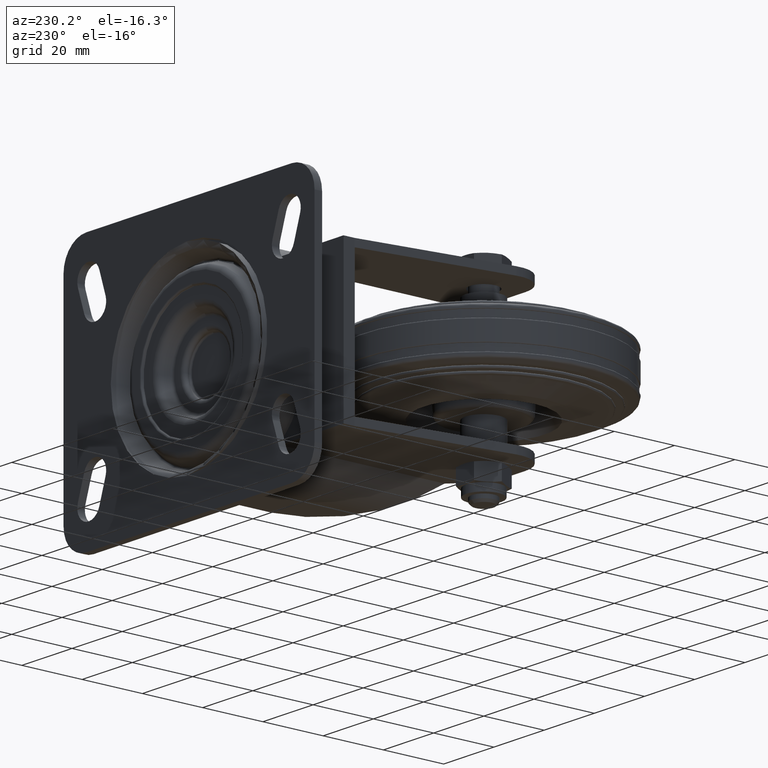
[diagram: clean part render]
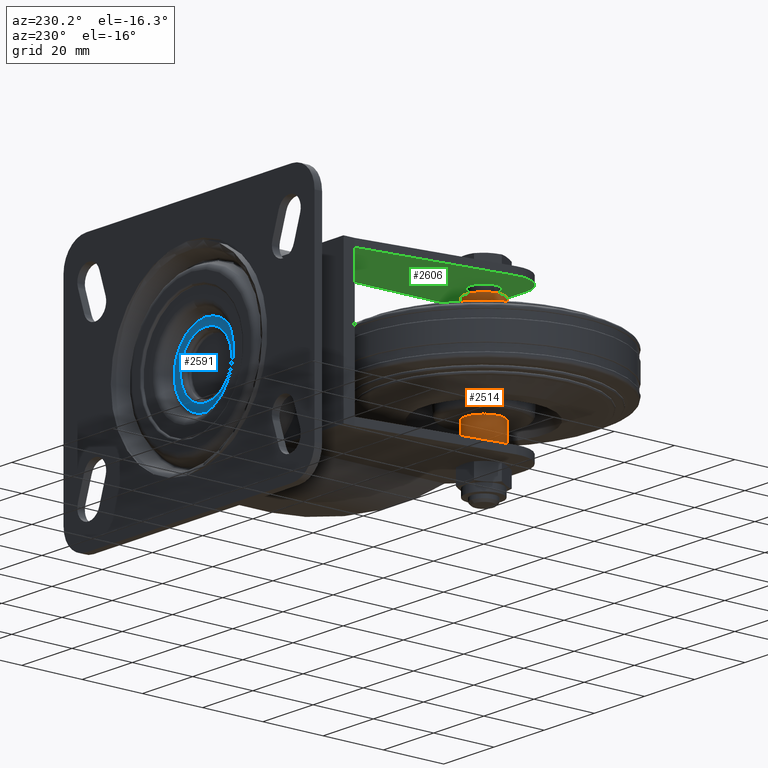
[diagram: same view with three faces highlighted in distinct colors, each labeled with its STEP entity id]
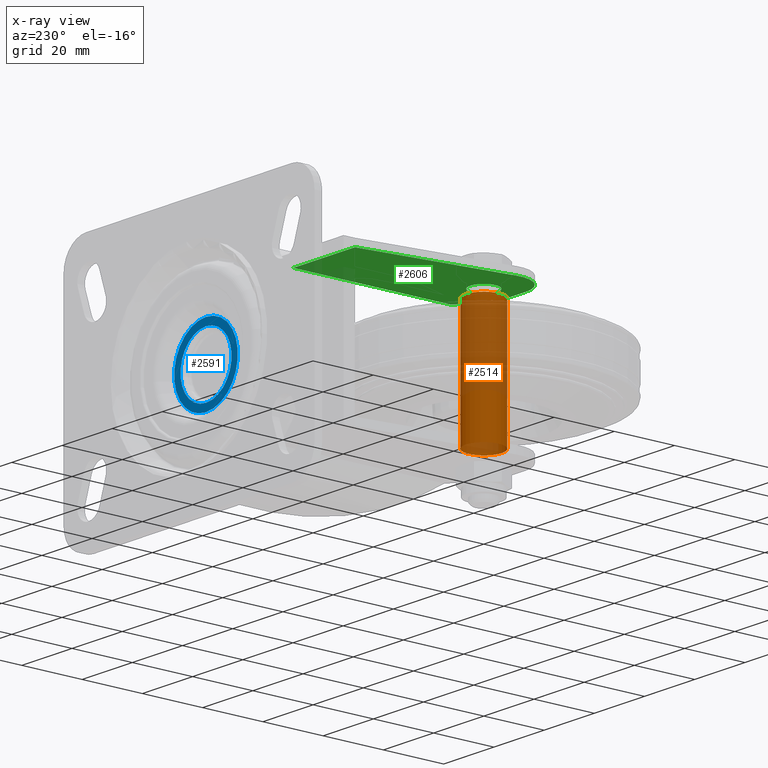
[diagram: x-ray of the same camera — body ghosted, the three highlighted faces saturated]
A machine part, auxiliary view with three faces highlighted in distinct colors.
The next image is the same camera in x-ray (body ghosted, the three faces saturated) — at least one of them is partly hidden behind the body in this view.
Their STEP definitions:

[orange] entity #2514 — the highlighted cylindrical surface (bore or boss wall) has radius 6 mm, axis along (0, 0, -1).
#230=LINE('',#4155,#358);
#358=VECTOR('',#3246,6.);
#479=CYLINDRICAL_SURFACE('',#2817,6.);
#541=FACE_OUTER_BOUND('',#715,.T.);
#715=EDGE_LOOP('',(#1826,#1827,#1828,#1829));
#909=CIRCLE('',#2813,6.);
#911=CIRCLE('',#2816,6.);
#1152=VERTEX_POINT('',#4147);
#1154=VERTEX_POINT('',#4152);
#1402=EDGE_CURVE('',#1152,#1152,#909,.T.);
#1404=EDGE_CURVE('',#1154,#1154,#911,.T.);
#1405=EDGE_CURVE('',#1154,#1152,#230,.T.);
#1826=ORIENTED_EDGE('',*,*,#1404,.F.);
#1827=ORIENTED_EDGE('',*,*,#1405,.T.);
#1828=ORIENTED_EDGE('',*,*,#1402,.T.);
#1829=ORIENTED_EDGE('',*,*,#1405,.F.);
#2514=ADVANCED_FACE('',(#541),#479,.T.);
#2813=AXIS2_PLACEMENT_3D('',#4148,#3236,#3237);
#2816=AXIS2_PLACEMENT_3D('',#4153,#3242,#3243);
#2817=AXIS2_PLACEMENT_3D('',#4154,#3244,#3245);
#3236=DIRECTION('center_axis',(1.,0.,0.));
#3237=DIRECTION('ref_axis',(0.,0.,-1.));
#3242=DIRECTION('center_axis',(1.,0.,0.));
#3243=DIRECTION('ref_axis',(0.,0.,-1.));
#3244=DIRECTION('center_axis',(1.,0.,0.));
#3245=DIRECTION('ref_axis',(0.,0.,-1.));
#3246=DIRECTION('',(-1.,0.,0.));
#4147=CARTESIAN_POINT('',(10.3,-7.34788079488412E-16,6.));
#4148=CARTESIAN_POINT('Origin',(10.3,0.,0.));
#4152=CARTESIAN_POINT('',(50.3,-7.34788079488412E-16,6.));
#4153=CARTESIAN_POINT('Origin',(50.3,0.,0.));
#4154=CARTESIAN_POINT('Origin',(50.3,0.,0.));
#4155=CARTESIAN_POINT('',(50.3,-7.34788079488412E-16,6.));

[blue] entity #2591 — the highlighted planar face has unit normal (0, -1, 0).
#135=FACE_BOUND('',#809,.T.);
#199=PLANE('',#2972);
#618=FACE_OUTER_BOUND('',#808,.T.);
#808=EDGE_LOOP('',(#2203));
#809=EDGE_LOOP('',(#2204));
#982=CIRCLE('',#2970,10.175);
#984=CIRCLE('',#2973,12.6726991065725);
#1283=VERTEX_POINT('',#4633);
#1284=VERTEX_POINT('',#4637);
#1603=EDGE_CURVE('',#1283,#1283,#982,.T.);
#1605=EDGE_CURVE('',#1284,#1284,#984,.T.);
#2203=ORIENTED_EDGE('',*,*,#1605,.F.);
#2204=ORIENTED_EDGE('',*,*,#1603,.T.);
#2591=ADVANCED_FACE('',(#618,#135),#199,.F.);
#2970=AXIS2_PLACEMENT_3D('',#4634,#3646,#3647);
#2972=AXIS2_PLACEMENT_3D('',#4636,#3650,#3651);
#2973=AXIS2_PLACEMENT_3D('',#4638,#3652,#3653);
#3646=DIRECTION('center_axis',(0.,-1.,0.));
#3647=DIRECTION('ref_axis',(0.,0.,-1.));
#3650=DIRECTION('center_axis',(0.,-1.,0.));
#3651=DIRECTION('ref_axis',(0.,0.,-1.));
#3652=DIRECTION('center_axis',(0.,-1.,0.));
#3653=DIRECTION('ref_axis',(0.,0.,-1.));
#4633=CARTESIAN_POINT('',(39.,59.7,10.175));
#4634=CARTESIAN_POINT('Origin',(39.,59.7,0.));
#4636=CARTESIAN_POINT('Origin',(49.175,59.7,0.));
#4637=CARTESIAN_POINT('',(39.,59.7,12.6726991065725));
#4638=CARTESIAN_POINT('Origin',(39.,59.7,0.));

[green] entity #2606 — the highlighted planar face has unit normal (0, 0, -1).
#138=FACE_BOUND('',#827,.T.);
#205=PLANE('',#3006);
#243=LINE('',#4322,#371);
#249=LINE('',#4343,#377);
#257=LINE('',#4367,#385);
#263=LINE('',#4380,#391);
#330=LINE('',#4688,#458);
#371=VECTOR('',#3351,1000.);
#377=VECTOR('',#3369,1000.);
#385=VECTOR('',#3393,1000.);
#391=VECTOR('',#3405,1000.);
#458=VECTOR('',#3724,1000.);
#633=FACE_OUTER_BOUND('',#826,.T.);
#826=EDGE_LOOP('',(#2259,#2260,#2261,#2262,#2263,#2264,#2265));
#827=EDGE_LOOP('',(#2266));
#927=CIRCLE('',#2858,10.);
#931=CIRCLE('',#2872,10.);
#1003=CIRCLE('',#3007,4.5);
#1182=VERTEX_POINT('',#4303);
#1183=VERTEX_POINT('',#4304);
#1190=VERTEX_POINT('',#4321);
#1199=VERTEX_POINT('',#4341);
#1202=VERTEX_POINT('',#4352);
#1207=VERTEX_POINT('',#4365);
#1211=VERTEX_POINT('',#4379);
#1297=VERTEX_POINT('',#4689);
#1453=EDGE_CURVE('',#1182,#1183,#927,.T.);
#1461=EDGE_CURVE('',#1182,#1190,#243,.T.);
#1472=EDGE_CURVE('',#1183,#1199,#249,.T.);
#1477=EDGE_CURVE('',#1199,#1202,#931,.T.);
#1484=EDGE_CURVE('',#1207,#1202,#257,.T.);
#1491=EDGE_CURVE('',#1190,#1211,#263,.F.);
#1628=EDGE_CURVE('',#1211,#1207,#330,.T.);
#1629=EDGE_CURVE('',#1297,#1297,#1003,.F.);
#2259=ORIENTED_EDGE('',*,*,#1477,.T.);
#2260=ORIENTED_EDGE('',*,*,#1484,.F.);
#2261=ORIENTED_EDGE('',*,*,#1628,.F.);
#2262=ORIENTED_EDGE('',*,*,#1491,.F.);
#2263=ORIENTED_EDGE('',*,*,#1461,.F.);
#2264=ORIENTED_EDGE('',*,*,#1453,.T.);
#2265=ORIENTED_EDGE('',*,*,#1472,.T.);
#2266=ORIENTED_EDGE('',*,*,#1629,.T.);
#2606=ADVANCED_FACE('',(#633,#138),#205,.T.);
#2858=AXIS2_PLACEMENT_3D('',#4305,#3335,#3336);
#2872=AXIS2_PLACEMENT_3D('',#4353,#3378,#3379);
#3006=AXIS2_PLACEMENT_3D('',#4687,#3722,#3723);
#3007=AXIS2_PLACEMENT_3D('',#4690,#3725,#3726);
#3335=DIRECTION('center_axis',(0.,0.,-1.));
#3336=DIRECTION('ref_axis',(-1.,0.,0.));
#3351=DIRECTION('',(0.717234621287984,0.696831757331626,0.));
#3369=DIRECTION('',(-1.,0.,0.));
#3378=DIRECTION('center_axis',(0.,0.,-1.));
#3379=DIRECTION('ref_axis',(-1.,0.,0.));
#3393=DIRECTION('',(-0.13597269636138,-0.990712584882324,0.));
#3405=DIRECTION('',(0.,-1.,0.));
#3722=DIRECTION('center_axis',(0.,0.,-1.));
#3723=DIRECTION('ref_axis',(-1.,0.,0.));
#3724=DIRECTION('',(-1.,0.,0.));
#3725=DIRECTION('center_axis',(0.,0.,-1.));
#3726=DIRECTION('ref_axis',(-1.,0.,0.));
#4303=CARTESIAN_POINT('',(11.6683175733163,-7.17234621287983,22.5));
#4304=CARTESIAN_POINT('',(4.7,-9.99999999999999,22.5));
#4305=CARTESIAN_POINT('Origin',(4.69999999999999,1.04083408558608E-14,22.5));
#4321=CARTESIAN_POINT('',(16.408739718026,-2.5667728125608,22.5));
#4322=CARTESIAN_POINT('',(70.,49.5,22.5));
#4341=CARTESIAN_POINT('',(-4.7,-9.99999999999999,22.5));
#4343=CARTESIAN_POINT('',(25.,-9.99999999999999,22.5));
#4352=CARTESIAN_POINT('',(-14.6071258488232,1.35972696361381,22.5));
#4353=CARTESIAN_POINT('Origin',(-4.7,1.73472347597681E-15,22.5));
#4365=CARTESIAN_POINT('',(-8.,49.5,22.5));
#4367=CARTESIAN_POINT('',(-14.6071258488232,1.3597269636138,22.5));
#4379=CARTESIAN_POINT('',(16.408739718026,49.5,22.5));
#4380=CARTESIAN_POINT('',(16.408739718026,-10.,22.5));
#4687=CARTESIAN_POINT('Origin',(25.,49.5,22.5));
#4688=CARTESIAN_POINT('',(25.,49.5,22.5));
#4689=CARTESIAN_POINT('',(4.5,-5.51091059616309E-16,22.5));
#4690=CARTESIAN_POINT('Origin',(0.,0.,22.5));